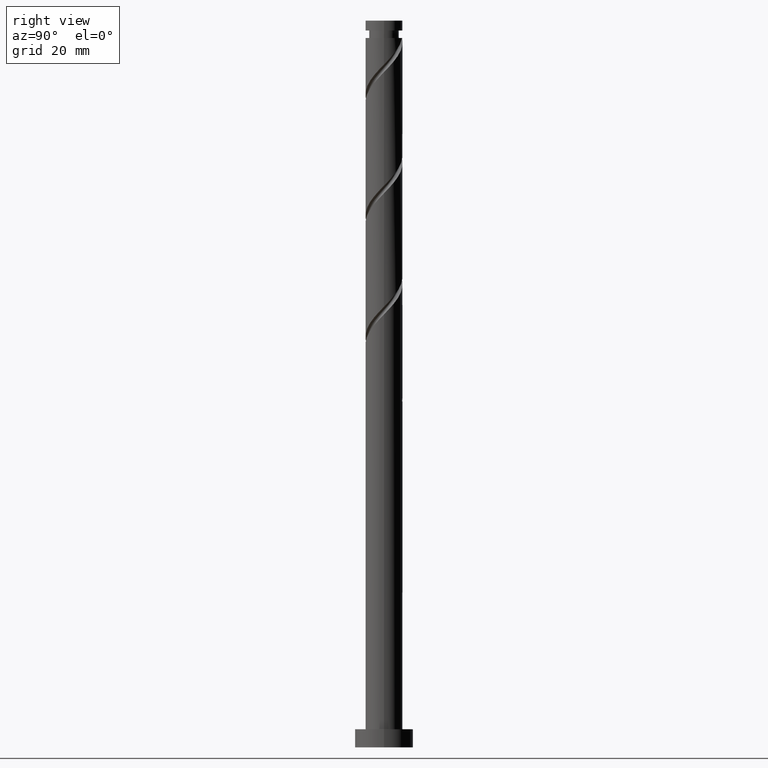
[diagram: clean part render]
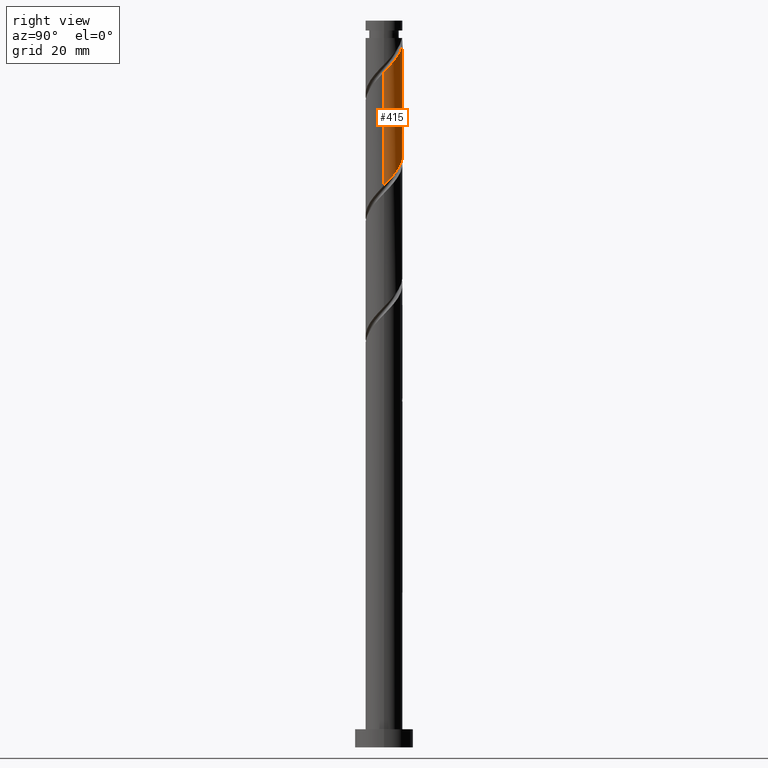
[diagram: same view with one face highlighted and labeled with its STEP entity id]
A machine part, right view. The second image highlights one B-rep face of the part: STEP entity #415.
In plain terms, the highlighted cylindrical surface (edge-blend (fillet) strip) has radius 5.1 mm, axis along (-0, -0, -1).
Its self-contained STEP definition (entity closure, byte-faithful):
#10 =( BOUNDED_CURVE ( )  B_SPLINE_CURVE ( 2, ( #1221, #405, #809, #32, #836, #1477, #556, #275, #1375, #1230, #421, #802, #1071, #1625, #567, #179, #549, #1487, #1356, #945, #1496, #295, #710, #1367, #23, #962, #1646 ),
 .UNSPECIFIED., .F., .T. ) 
 B_SPLINE_CURVE_WITH_KNOTS ( ( 3, 2, 2, 2, 2, 2, 2, 2, 2, 2, 2, 2, 2, 3 ),
 ( 0.4295317669814464057, 0.4375000000000000000, 0.4479166666666666852, 0.4583333333333333148, 0.4687500000000000000, 0.4791666666666666852, 0.4895833333333333148, 0.5000000000000000000, 0.5104166666666666297, 0.5208333333333333703, 0.5312500000000000000, 0.5416666666666666297, 0.5520833333333333703, 0.5545317669814462391 ),
 .UNSPECIFIED. ) 
 CURVE ( )  GEOMETRIC_REPRESENTATION_ITEM ( )  RATIONAL_B_SPLINE_CURVE ( ( 0.9062941362546383939, 0.9031415850403428092, 0.9090909090909178314, 0.9013135103398364212, 0.9090909090909178314, 0.9013135103398364212, 0.9090909090909178314, 0.9013135103398364212, 0.9090909090909178314, 0.9013135103398364212, 0.9090909090909178314, 0.9013135103398364212, 0.9090909090909178314, 0.9013135103398364212, 0.9090909090909178314, 0.9013135103398364212, 0.9090909090909178314, 0.9013135103398364212, 0.9090909090909178314, 0.9013135103398364212, 0.9090909090909178314, 0.9013135103398364212, 0.9090909090909178314, 0.9013135103398364212, 0.9090909090909178314, 0.9072628343904116655, 0.9062941362546382829 ) ) 
 REPRESENTATION_ITEM ( '' )  );
#23 = CARTESIAN_POINT ( 'NONE',  ( 5.090369412120920423, 0.3132718438412518402, 154.9423034357766653 ) ) ;
#26 = VERTEX_POINT ( 'NONE', #105 ) ;
#32 = CARTESIAN_POINT ( 'NONE',  ( -4.864387567213565688, 1.672886368790558187, 169.5256367691099797 ) ) ;
#36 = CYLINDRICAL_SURFACE ( 'NONE', #431, 5.099999999999999645 ) ;
#37 = CIRCLE ( 'NONE', #1652, 5.099999999999988098 ) ;
#59 = DIRECTION ( 'NONE',  ( -1.000000000000000000, 0.000000000000000000, 0.000000000000000000 ) ) ;
#78 = ORIENTED_EDGE ( 'NONE', *, *, #952, .T. ) ;
#86 = CARTESIAN_POINT ( 'NONE',  ( -5.099999999999999645, 0.000000000000000000, 200.0000000000000000 ) ) ;
#105 = CARTESIAN_POINT ( 'NONE',  ( -5.099999999999988098, 0.000000000000000000, 195.2200812135544368 ) ) ;
#106 = CARTESIAN_POINT ( 'NONE',  ( 4.565025147464612409, 2.273883331003543784, 188.2756367691099797 ) ) ;
#117 = VERTEX_POINT ( 'NONE', #1083 ) ;
#138 = CARTESIAN_POINT ( 'NONE',  ( 0.000000000000000000, 0.000000000000000000, 195.2200812135544368 ) ) ;
#165 =( BOUNDED_CURVE ( )  B_SPLINE_CURVE ( 2, ( #375, #908, #525, #652, #106, #1702, #367, #1598, #1709, #901, #1456, #1175, #1725, #253, #780 ),
 .UNSPECIFIED., .F., .T. ) 
 B_SPLINE_CURVE_WITH_KNOTS ( ( 3, 2, 2, 2, 2, 2, 2, 3 ),
 ( 0.6795317669814464612, 0.6875000000000000000, 0.6979166666666666297, 0.7083333333333331483, 0.7187499999999998890, 0.7291666666666666297, 0.7395833333333330373, 0.7499999999999997780 ),
 .UNSPECIFIED. ) 
 CURVE ( )  GEOMETRIC_REPRESENTATION_ITEM ( )  RATIONAL_B_SPLINE_CURVE ( ( 0.9062941362546440560, 0.9031415850403486933, 0.9090909090909238266, 0.9013135103398423054, 0.9090909090909238266, 0.9013135103398423054, 0.9090909090909238266, 0.9013135103398423054, 0.9090909090909238266, 0.9013135103398423054, 0.9090909090909238266, 0.9013135103398423054, 0.9090909090909238266, 0.9013135103398425274, 0.9090909090909236046 ) ) 
 REPRESENTATION_ITEM ( '' )  );
#179 = CARTESIAN_POINT ( 'NONE',  ( 1.672886368790562184, 4.864387567213564800, 161.1923034357766369 ) ) ;
#233 = ORIENTED_EDGE ( 'NONE', *, *, #657, .F. ) ;
#253 = CARTESIAN_POINT ( 'NONE',  ( -0.3568880029069293469, 5.131612432786436528, 194.5256367691099797 ) ) ;
#275 = CARTESIAN_POINT ( 'NONE',  ( -3.376240022664852347, 3.880955876624109457, 166.7478589913322082 ) ) ;
#295 = CARTESIAN_POINT ( 'NONE',  ( 4.622550730622591253, 2.256732139569898266, 157.0256367691099797 ) ) ;
#356 = ORIENTED_EDGE ( 'NONE', *, *, #583, .F. ) ;
#367 = CARTESIAN_POINT ( 'NONE',  ( 3.820951375190256183, 3.377918084920319863, 189.6645256579988654 ) ) ;
#375 = CARTESIAN_POINT ( 'NONE',  ( 5.100000000000005862, -1.345840599925808307E-15, 185.8231812250110977 ) ) ;
#405 = CARTESIAN_POINT ( 'NONE',  ( -5.099999999999996980, 0.5125692857822083948, 170.7502214995751899 ) ) ;
#415 = ADVANCED_FACE ( 'NONE', ( #608 ), #36, .T. ) ;
#421 = CARTESIAN_POINT ( 'NONE',  ( -1.620081915079679469, 4.835838561039000005, 164.6645256579988938 ) ) ;
#431 = AXIS2_PLACEMENT_3D ( 'NONE', #596, #973, #59 ) ;
#437 = DIRECTION ( 'NONE',  ( -1.000000000000000000, 0.000000000000000000, 0.000000000000000000 ) ) ;
#457 = LINE ( 'NONE', #86, #1470 ) ;
#459 = VERTEX_POINT ( 'NONE', #1527 ) ;
#507 = CARTESIAN_POINT ( 'NONE',  ( 5.099999999999999645, 6.245698675651500839E-16, 200.0000000000000000 ) ) ;
#525 = CARTESIAN_POINT ( 'NONE',  ( 4.998000000000005549, 1.014887185848753370, 186.8867478802210940 ) ) ;
#549 = CARTESIAN_POINT ( 'NONE',  ( 2.273883331003546449, 4.565025147464601751, 160.4978589913322367 ) ) ;
#556 = CARTESIAN_POINT ( 'NONE',  ( -3.820951375190246413, 3.377918084920319863, 167.4423034357766369 ) ) ;
#567 = CARTESIAN_POINT ( 'NONE',  ( 1.014887185848754703, 4.997999999999998444, 161.8867478802211224 ) ) ;
#583 = EDGE_CURVE ( 'NONE', #781, #117, #10, .T. ) ;
#596 = CARTESIAN_POINT ( 'NONE',  ( 0.000000000000000000, 0.000000000000000000, 200.0000000000000000 ) ) ;
#608 = FACE_OUTER_BOUND ( 'NONE', #948, .T. ) ;
#615 = DIRECTION ( 'NONE',  ( -0.000000000000000000, -0.000000000000000000, -1.000000000000000000 ) ) ;
#622 = VERTEX_POINT ( 'NONE', #854 ) ;
#652 = CARTESIAN_POINT ( 'NONE',  ( 4.864387567213577235, 1.672886368790558409, 187.5811923246655510 ) ) ;
#657 = EDGE_CURVE ( 'NONE', #26, #781, #457, .T. ) ;
#710 = CARTESIAN_POINT ( 'NONE',  ( 4.835838561039001782, 1.620081915079676360, 156.3311923246655510 ) ) ;
#780 = CARTESIAN_POINT ( 'NONE',  ( -1.014887185848753370, 4.998000000000009102, 195.2200812135544936 ) ) ;
#781 = VERTEX_POINT ( 'NONE', #1027 ) ;
#802 = CARTESIAN_POINT ( 'NONE',  ( -0.9834316905894574523, 5.049126391455411422, 163.9700812135543799 ) ) ;
#805 = DIRECTION ( 'NONE',  ( -0.000000000000000000, -0.000000000000000000, -1.000000000000000000 ) ) ;
#809 = CARTESIAN_POINT ( 'NONE',  ( -4.997999999999998444, 1.014887185848753592, 170.2200812135544084 ) ) ;
#836 = CARTESIAN_POINT ( 'NONE',  ( -4.565025147464603528, 2.273883331003543784, 168.8311923246655226 ) ) ;
#854 = CARTESIAN_POINT ( 'NONE',  ( -1.014887185848753370, 4.998000000000009102, 195.2200812135544936 ) ) ;
#901 = CARTESIAN_POINT ( 'NONE',  ( 2.256732139569908036, 4.622550730622595694, 191.7478589913322082 ) ) ;
#908 = CARTESIAN_POINT ( 'NONE',  ( 5.100000000000004086, 0.5125692857822100601, 186.3566075942002840 ) ) ;
#945 = CARTESIAN_POINT ( 'NONE',  ( 3.880955876624110346, 3.376240022664851903, 158.4145256579988654 ) ) ;
#948 = EDGE_LOOP ( 'NONE', ( #1104, #1734, #356, #233, #78 ) ) ;
#952 = EDGE_CURVE ( 'NONE', #26, #622, #37, .T. ) ;
#962 = CARTESIAN_POINT ( 'NONE',  ( 5.099999999999999645, 0.1567839534541362323, 154.7801448901259960 ) ) ;
#973 = DIRECTION ( 'NONE',  ( -0.000000000000000000, -0.000000000000000000, -1.000000000000000000 ) ) ;
#1027 = CARTESIAN_POINT ( 'NONE',  ( -5.099999999999998757, -3.005710673167657517E-15, 171.2836478687644899 ) ) ;
#1071 = CARTESIAN_POINT ( 'NONE',  ( -0.3132718438412538942, 5.090369412120920423, 163.2756367691100081 ) ) ;
#1083 = CARTESIAN_POINT ( 'NONE',  ( 5.099999999999999645, 7.162862748494070939E-15, 154.6169812020978327 ) ) ;
#1104 = ORIENTED_EDGE ( 'NONE', *, *, #1297, .F. ) ;
#1128 = VECTOR ( 'NONE', #805, 1000.000000000000000 ) ;
#1175 = CARTESIAN_POINT ( 'NONE',  ( 0.9834316905894631144, 5.049126391455418528, 193.1367478802210655 ) ) ;
#1218 = DIRECTION ( 'NONE',  ( -0.000000000000000000, -0.000000000000000000, -1.000000000000000000 ) ) ;
#1221 = CARTESIAN_POINT ( 'NONE',  ( -5.099999999999998757, -3.005710673167657517E-15, 171.2836478687644899 ) ) ;
#1230 = CARTESIAN_POINT ( 'NONE',  ( -2.256732139569902262, 4.622550730622587700, 165.3589701024432657 ) ) ;
#1297 = EDGE_CURVE ( 'NONE', #459, #622, #165, .T. ) ;
#1356 = CARTESIAN_POINT ( 'NONE',  ( 3.377918084920320752, 3.820951375190244192, 159.1089701024433225 ) ) ;
#1367 = CARTESIAN_POINT ( 'NONE',  ( 5.049126391455411422, 0.9834316905894537886, 155.6367478802210940 ) ) ;
#1375 = CARTESIAN_POINT ( 'NONE',  ( -2.816486081117378415, 4.251753303623349467, 166.0534145468878080 ) ) ;
#1456 = CARTESIAN_POINT ( 'NONE',  ( 1.620081915079685686, 4.835838561039006223, 192.4423034357766369 ) ) ;
#1470 = VECTOR ( 'NONE', #615, 1000.000000000000000 ) ;
#1477 = CARTESIAN_POINT ( 'NONE',  ( -4.265662727715638702, 2.874880293216528493, 168.1367478802210655 ) ) ;
#1478 = EDGE_CURVE ( 'NONE', #459, #117, #1714, .T. ) ;
#1487 = CARTESIAN_POINT ( 'NONE',  ( 2.874880293216530269, 4.265662727715638702, 159.8034145468877512 ) ) ;
#1496 = CARTESIAN_POINT ( 'NONE',  ( 4.251753303623349467, 2.816486081117377083, 157.7200812135544368 ) ) ;
#1527 = CARTESIAN_POINT ( 'NONE',  ( 5.100000000000006750, -1.345840599925808307E-15, 185.8231812250110977 ) ) ;
#1598 = CARTESIAN_POINT ( 'NONE',  ( 3.376240022664863005, 3.880955876624111678, 190.3589701024433225 ) ) ;
#1625 = CARTESIAN_POINT ( 'NONE',  ( 0.3568880029069491089, 5.131612432786430311, 162.5811923246655226 ) ) ;
#1646 = CARTESIAN_POINT ( 'NONE',  ( 5.099999999999999645, 7.162862748494070939E-15, 154.6169812020978327 ) ) ;
#1652 = AXIS2_PLACEMENT_3D ( 'NONE', #138, #1218, #437 ) ;
#1702 = CARTESIAN_POINT ( 'NONE',  ( 4.265662727715649361, 2.874880293216528937, 188.9700812135544368 ) ) ;
#1709 = CARTESIAN_POINT ( 'NONE',  ( 2.816486081117384188, 4.251753303623354796, 191.0534145468877512 ) ) ;
#1714 = LINE ( 'NONE', #507, #1128 ) ;
#1725 = CARTESIAN_POINT ( 'NONE',  ( 0.3132718438412595563, 5.090369412120927528, 193.8311923246655795 ) ) ;
#1734 = ORIENTED_EDGE ( 'NONE', *, *, #1478, .T. ) ;